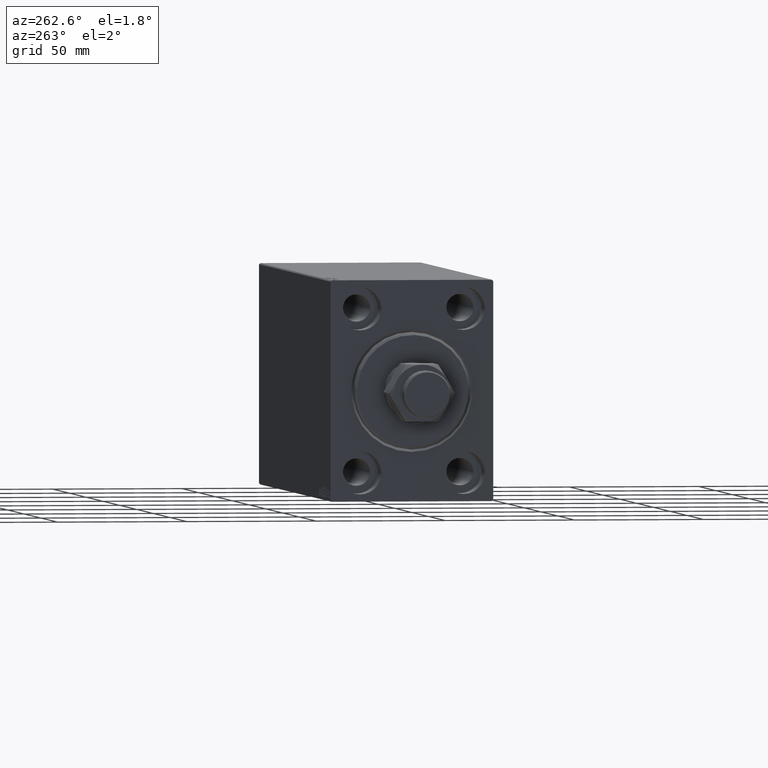
[diagram: clean part render]
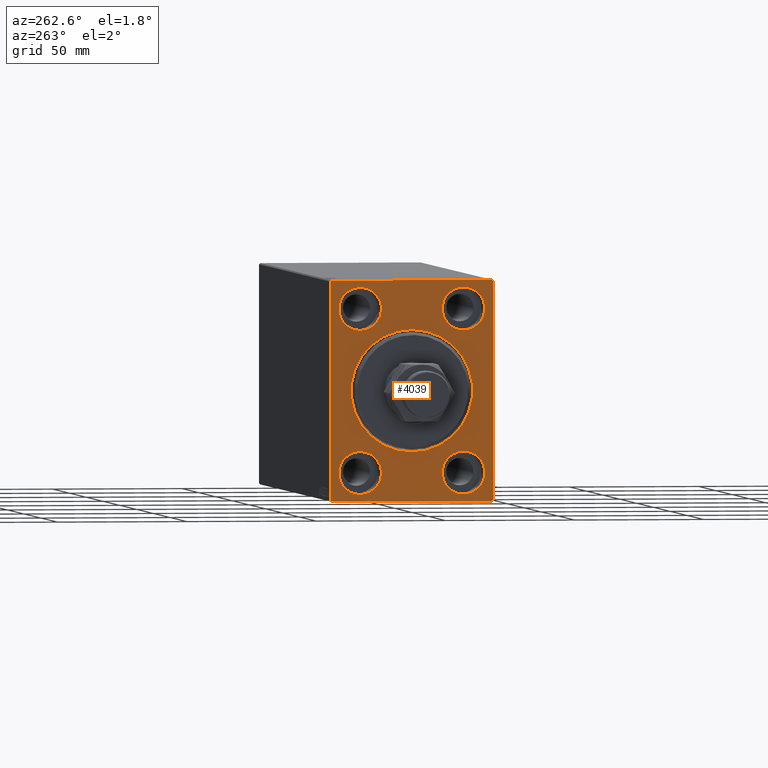
[diagram: same view with one face highlighted and labeled with its STEP entity id]
A machine part, auxiliary view. The second image highlights one B-rep face of the part: STEP entity #4039.
In plain terms, the highlighted planar face has unit normal (1, 0, 0).
Its self-contained STEP definition (entity closure, byte-faithful):
#397 = VERTEX_POINT ( 'NONE', #18683 ) ;
#747 = ORIENTED_EDGE ( 'NONE', *, *, #10269, .F. ) ;
#761 = CIRCLE ( 'NONE', #24245, 8.250000000000000000 ) ;
#1212 = DIRECTION ( 'NONE',  ( 0.000000000000000000, 0.000000000000000000, -1.000000000000000000 ) ) ;
#1278 = CARTESIAN_POINT ( 'NONE',  ( 0.000000000000000000, 0.000000000000000000, 0.000000000000000000 ) ) ;
#1511 = FACE_BOUND ( 'NONE', #20063, .T. ) ;
#1793 = AXIS2_PLACEMENT_3D ( 'NONE', #13239, #16449, #16894 ) ;
#2051 = DIRECTION ( 'NONE',  ( -1.000000000000000000, 0.000000000000000000, 0.000000000000000000 ) ) ;
#2132 = EDGE_CURVE ( 'NONE', #13421, #14173, #24064, .T. ) ;
#2227 = ORIENTED_EDGE ( 'NONE', *, *, #9951, .F. ) ;
#2259 = DIRECTION ( 'NONE',  ( -0.000000000000000000, 0.7071067811865474617, -0.7071067811865474617 ) ) ;
#2295 = EDGE_CURVE ( 'NONE', #27025, #31249, #35948, .T. ) ;
#2410 = EDGE_CURVE ( 'NONE', #38681, #27901, #27681, .T. ) ;
#3124 = DIRECTION ( 'NONE',  ( 1.000000000000000000, 0.000000000000000000, 0.000000000000000000 ) ) ;
#3178 = VECTOR ( 'NONE', #41059, 1000.000000000000000 ) ;
#3410 = AXIS2_PLACEMENT_3D ( 'NONE', #19933, #2051, #16721 ) ;
#4039 = ADVANCED_FACE ( 'NONE', ( #15746, #1511, #36379, #32484, #11636, #8411 ), #4958, .F. ) ;
#4210 = EDGE_CURVE ( 'NONE', #38681, #23390, #24151, .T. ) ;
#4354 = VERTEX_POINT ( 'NONE', #44537 ) ;
#4369 = CARTESIAN_POINT ( 'NONE',  ( 0.000000000000000000, -31.50000000000000000, -42.50000000000000711 ) ) ;
#4900 = VERTEX_POINT ( 'NONE', #14784 ) ;
#4958 = PLANE ( 'NONE',  #21506 ) ;
#5049 = ORIENTED_EDGE ( 'NONE', *, *, #4210, .T. ) ;
#5716 = DIRECTION ( 'NONE',  ( -1.000000000000000000, 0.000000000000000000, 0.000000000000000000 ) ) ;
#5962 = CARTESIAN_POINT ( 'NONE',  ( 0.000000000000000000, -31.50000000000000000, 42.49999999999999289 ) ) ;
#6330 = CARTESIAN_POINT ( 'NONE',  ( 0.000000000000000000, 31.50000000000000000, 42.00000000000000711 ) ) ;
#6688 = DIRECTION ( 'NONE',  ( -0.000000000000000000, 0.7071067811865474617, 0.7071067811865474617 ) ) ;
#7114 = VERTEX_POINT ( 'NONE', #12077 ) ;
#7332 = CARTESIAN_POINT ( 'NONE',  ( 0.000000000000000000, 31.50000000000001421, -42.00000000000000711 ) ) ;
#8114 = DIRECTION ( 'NONE',  ( 1.000000000000000000, 0.000000000000000000, 0.000000000000000000 ) ) ;
#8411 = FACE_OUTER_BOUND ( 'NONE', #35261, .T. ) ;
#8584 = CARTESIAN_POINT ( 'NONE',  ( 0.000000000000000000, -20.00000000000000355, -31.49999999999999289 ) ) ;
#9285 = CIRCLE ( 'NONE', #31960, 23.50000000000004619 ) ;
#9398 = CARTESIAN_POINT ( 'NONE',  ( 0.000000000000000000, 19.99999999999999645, -31.49999999999999289 ) ) ;
#9794 = CARTESIAN_POINT ( 'NONE',  ( 0.000000000000000000, 0.000000000000000000, 0.000000000000000000 ) ) ;
#9951 = EDGE_CURVE ( 'NONE', #7114, #31313, #37246, .T. ) ;
#10039 = ORIENTED_EDGE ( 'NONE', *, *, #25070, .F. ) ;
#10269 = EDGE_CURVE ( 'NONE', #41493, #4900, #40202, .T. ) ;
#10362 = LINE ( 'NONE', #17012, #40495 ) ;
#10462 = VECTOR ( 'NONE', #32341, 1000.000000000000000 ) ;
#10535 = VECTOR ( 'NONE', #2259, 1000.000000000000114 ) ;
#11177 = AXIS2_PLACEMENT_3D ( 'NONE', #9398, #23381, #12621 ) ;
#11636 = FACE_BOUND ( 'NONE', #44781, .T. ) ;
#11896 = DIRECTION ( 'NONE',  ( 0.000000000000000000, -1.000000000000000000, -2.202823461557850341E-16 ) ) ;
#12077 = CARTESIAN_POINT ( 'NONE',  ( 0.000000000000000000, -19.99999999999999645, 39.74999999999999289 ) ) ;
#12335 = AXIS2_PLACEMENT_3D ( 'NONE', #32732, #18295, #14628 ) ;
#12468 = ORIENTED_EDGE ( 'NONE', *, *, #14319, .F. ) ;
#12621 = DIRECTION ( 'NONE',  ( 0.000000000000000000, 0.000000000000000000, 1.000000000000000000 ) ) ;
#12747 = DIRECTION ( 'NONE',  ( 0.000000000000000000, 0.000000000000000000, 1.000000000000000000 ) ) ;
#13097 = AXIS2_PLACEMENT_3D ( 'NONE', #9794, #3124, #34756 ) ;
#13196 = EDGE_LOOP ( 'NONE', ( #27744, #30615 ) ) ;
#13239 = CARTESIAN_POINT ( 'NONE',  ( 0.000000000000000000, -20.00000000000000355, -31.49999999999999289 ) ) ;
#13421 = VERTEX_POINT ( 'NONE', #28138 ) ;
#13586 = VERTEX_POINT ( 'NONE', #20514 ) ;
#14063 = EDGE_CURVE ( 'NONE', #13586, #4354, #28427, .T. ) ;
#14173 = VERTEX_POINT ( 'NONE', #35882 ) ;
#14319 = EDGE_CURVE ( 'NONE', #31313, #7114, #33577, .T. ) ;
#14487 = CARTESIAN_POINT ( 'NONE',  ( 0.000000000000000000, -31.00000000000000000, -42.50000000000000711 ) ) ;
#14628 = DIRECTION ( 'NONE',  ( 0.000000000000000000, 0.000000000000000000, 1.000000000000000000 ) ) ;
#14784 = CARTESIAN_POINT ( 'NONE',  ( 0.000000000000000000, 19.99999999999999645, -39.74999999999999289 ) ) ;
#15746 = FACE_BOUND ( 'NONE', #13196, .T. ) ;
#16008 = CARTESIAN_POINT ( 'NONE',  ( 0.000000000000000000, 31.50000000000000000, 42.50000000000000711 ) ) ;
#16449 = DIRECTION ( 'NONE',  ( -1.000000000000000000, 0.000000000000000000, 0.000000000000000000 ) ) ;
#16595 = LINE ( 'NONE', #18104, #25909 ) ;
#16721 = DIRECTION ( 'NONE',  ( 0.000000000000000000, 0.000000000000000000, 1.000000000000000000 ) ) ;
#16894 = DIRECTION ( 'NONE',  ( 0.000000000000000000, 0.000000000000000000, 1.000000000000000000 ) ) ;
#17012 = CARTESIAN_POINT ( 'NONE',  ( 0.000000000000000000, -31.50000000000000000, 41.99999999999999289 ) ) ;
#17136 = VECTOR ( 'NONE', #24598, 1000.000000000000114 ) ;
#17290 = ORIENTED_EDGE ( 'NONE', *, *, #2132, .F. ) ;
#18104 = CARTESIAN_POINT ( 'NONE',  ( 0.000000000000000000, -31.00000000000000000, -42.50000000000000711 ) ) ;
#18205 = AXIS2_PLACEMENT_3D ( 'NONE', #32950, #32269, #29057 ) ;
#18261 = CARTESIAN_POINT ( 'NONE',  ( 0.000000000000000000, 20.00000000000000355, 23.25000000000000355 ) ) ;
#18295 = DIRECTION ( 'NONE',  ( -1.000000000000000000, 0.000000000000000000, 0.000000000000000000 ) ) ;
#18367 = ORIENTED_EDGE ( 'NONE', *, *, #28142, .T. ) ;
#18683 = CARTESIAN_POINT ( 'NONE',  ( 0.000000000000000000, -20.00000000000000355, -39.74999999999999289 ) ) ;
#18955 = DIRECTION ( 'NONE',  ( 1.000000000000000000, 0.000000000000000000, 0.000000000000000000 ) ) ;
#19568 = CARTESIAN_POINT ( 'NONE',  ( 0.000000000000000000, -20.00000000000000355, -23.24999999999999289 ) ) ;
#19933 = CARTESIAN_POINT ( 'NONE',  ( 0.000000000000000000, 20.00000000000000355, 31.50000000000000000 ) ) ;
#20063 = EDGE_LOOP ( 'NONE', ( #747, #10039 ) ) ;
#20514 = CARTESIAN_POINT ( 'NONE',  ( 0.000000000000000000, 0.000000000000000000, 23.50000000000004619 ) ) ;
#21079 = CIRCLE ( 'NONE', #12335, 8.249999999999992895 ) ;
#21302 = EDGE_CURVE ( 'NONE', #25881, #397, #761, .T. ) ;
#21506 = AXIS2_PLACEMENT_3D ( 'NONE', #1278, #18955, #22854 ) ;
#21792 = LINE ( 'NONE', #4369, #10462 ) ;
#22682 = CARTESIAN_POINT ( 'NONE',  ( 0.000000000000000000, -19.99999999999999645, 23.25000000000000355 ) ) ;
#22805 = DIRECTION ( 'NONE',  ( -1.000000000000000000, 0.000000000000000000, 0.000000000000000000 ) ) ;
#22819 = DIRECTION ( 'NONE',  ( -1.000000000000000000, 0.000000000000000000, 0.000000000000000000 ) ) ;
#22854 = DIRECTION ( 'NONE',  ( 0.000000000000000000, 0.000000000000000000, -1.000000000000000000 ) ) ;
#23306 = CARTESIAN_POINT ( 'NONE',  ( 0.000000000000000000, 19.99999999999999645, -23.24999999999999289 ) ) ;
#23381 = DIRECTION ( 'NONE',  ( -1.000000000000000000, 0.000000000000000000, 0.000000000000000000 ) ) ;
#23390 = VERTEX_POINT ( 'NONE', #43969 ) ;
#23559 = ORIENTED_EDGE ( 'NONE', *, *, #34904, .F. ) ;
#23885 = ORIENTED_EDGE ( 'NONE', *, *, #21302, .F. ) ;
#24064 = LINE ( 'NONE', #5962, #3178 ) ;
#24151 = LINE ( 'NONE', #42044, #17136 ) ;
#24245 = AXIS2_PLACEMENT_3D ( 'NONE', #8584, #22805, #40472 ) ;
#24598 = DIRECTION ( 'NONE',  ( 0.000000000000000000, -0.7071067811865474617, -0.7071067811865474617 ) ) ;
#25070 = EDGE_CURVE ( 'NONE', #4900, #41493, #30954, .T. ) ;
#25289 = VERTEX_POINT ( 'NONE', #18261 ) ;
#25479 = ORIENTED_EDGE ( 'NONE', *, *, #30099, .T. ) ;
#25516 = AXIS2_PLACEMENT_3D ( 'NONE', #40485, #22819, #12747 ) ;
#25548 = ORIENTED_EDGE ( 'NONE', *, *, #40494, .F. ) ;
#25881 = VERTEX_POINT ( 'NONE', #19568 ) ;
#25897 = VECTOR ( 'NONE', #37771, 1000.000000000000000 ) ;
#25909 = VECTOR ( 'NONE', #44812, 1000.000000000000114 ) ;
#26809 = CARTESIAN_POINT ( 'NONE',  ( 0.000000000000000000, -31.00000000000000000, 42.49999999999999289 ) ) ;
#27025 = VERTEX_POINT ( 'NONE', #36665 ) ;
#27660 = VERTEX_POINT ( 'NONE', #40920 ) ;
#27681 = LINE ( 'NONE', #34541, #25897 ) ;
#27744 = ORIENTED_EDGE ( 'NONE', *, *, #14063, .T. ) ;
#27901 = VERTEX_POINT ( 'NONE', #6330 ) ;
#28138 = CARTESIAN_POINT ( 'NONE',  ( 0.000000000000000000, -31.50000000000000000, 41.99999999999999289 ) ) ;
#28142 = EDGE_CURVE ( 'NONE', #30878, #14173, #16595, .T. ) ;
#28427 = CIRCLE ( 'NONE', #13097, 23.50000000000004619 ) ;
#28602 = ORIENTED_EDGE ( 'NONE', *, *, #2410, .F. ) ;
#28699 = ORIENTED_EDGE ( 'NONE', *, *, #30229, .F. ) ;
#29057 = DIRECTION ( 'NONE',  ( 0.000000000000000000, 0.000000000000000000, 1.000000000000000000 ) ) ;
#30099 = EDGE_CURVE ( 'NONE', #13421, #31249, #10362, .T. ) ;
#30229 = EDGE_CURVE ( 'NONE', #30878, #23390, #21792, .T. ) ;
#30615 = ORIENTED_EDGE ( 'NONE', *, *, #40682, .T. ) ;
#30878 = VERTEX_POINT ( 'NONE', #14487 ) ;
#30954 = CIRCLE ( 'NONE', #11177, 8.250000000000000000 ) ;
#31249 = VERTEX_POINT ( 'NONE', #26809 ) ;
#31313 = VERTEX_POINT ( 'NONE', #22682 ) ;
#31839 = ORIENTED_EDGE ( 'NONE', *, *, #43091, .F. ) ;
#31960 = AXIS2_PLACEMENT_3D ( 'NONE', #43444, #8114, #1212 ) ;
#32269 = DIRECTION ( 'NONE',  ( -1.000000000000000000, 0.000000000000000000, 0.000000000000000000 ) ) ;
#32341 = DIRECTION ( 'NONE',  ( 0.000000000000000000, 1.000000000000000000, 0.000000000000000000 ) ) ;
#32484 = FACE_BOUND ( 'NONE', #35986, .T. ) ;
#32534 = CIRCLE ( 'NONE', #1793, 8.250000000000000000 ) ;
#32699 = CIRCLE ( 'NONE', #3410, 8.249999999999992895 ) ;
#32732 = CARTESIAN_POINT ( 'NONE',  ( 0.000000000000000000, 20.00000000000000355, 31.50000000000000000 ) ) ;
#32950 = CARTESIAN_POINT ( 'NONE',  ( 0.000000000000000000, 19.99999999999999645, -31.49999999999999289 ) ) ;
#33162 = EDGE_CURVE ( 'NONE', #27025, #27901, #33896, .T. ) ;
#33577 = CIRCLE ( 'NONE', #25516, 8.249999999999992895 ) ;
#33896 = LINE ( 'NONE', #44256, #10535 ) ;
#33903 = CARTESIAN_POINT ( 'NONE',  ( 0.000000000000000000, -19.99999999999999645, 31.50000000000000000 ) ) ;
#34541 = CARTESIAN_POINT ( 'NONE',  ( 0.000000000000000000, 31.50000000000001421, -42.50000000000000711 ) ) ;
#34756 = DIRECTION ( 'NONE',  ( 0.000000000000000000, 0.000000000000000000, -1.000000000000000000 ) ) ;
#34904 = EDGE_CURVE ( 'NONE', #397, #25881, #32534, .T. ) ;
#35261 = EDGE_LOOP ( 'NONE', ( #17290, #25479, #38334, #38450, #28602, #5049, #28699, #18367 ) ) ;
#35882 = CARTESIAN_POINT ( 'NONE',  ( 0.000000000000000000, -31.50000000000000000, -42.00000000000000711 ) ) ;
#35948 = LINE ( 'NONE', #16008, #44231 ) ;
#35986 = EDGE_LOOP ( 'NONE', ( #25548, #31839 ) ) ;
#36379 = FACE_BOUND ( 'NONE', #37656, .T. ) ;
#36665 = CARTESIAN_POINT ( 'NONE',  ( 0.000000000000000000, 31.00000000000000000, 42.50000000000000711 ) ) ;
#37246 = CIRCLE ( 'NONE', #43849, 8.249999999999992895 ) ;
#37576 = DIRECTION ( 'NONE',  ( 0.000000000000000000, 0.000000000000000000, 1.000000000000000000 ) ) ;
#37656 = EDGE_LOOP ( 'NONE', ( #2227, #12468 ) ) ;
#37771 = DIRECTION ( 'NONE',  ( 0.000000000000000000, -1.632680918566406300E-16, 1.000000000000000000 ) ) ;
#38334 = ORIENTED_EDGE ( 'NONE', *, *, #2295, .F. ) ;
#38450 = ORIENTED_EDGE ( 'NONE', *, *, #33162, .T. ) ;
#38681 = VERTEX_POINT ( 'NONE', #7332 ) ;
#40202 = CIRCLE ( 'NONE', #18205, 8.250000000000000000 ) ;
#40472 = DIRECTION ( 'NONE',  ( 0.000000000000000000, 0.000000000000000000, 1.000000000000000000 ) ) ;
#40485 = CARTESIAN_POINT ( 'NONE',  ( 0.000000000000000000, -19.99999999999999645, 31.50000000000000000 ) ) ;
#40494 = EDGE_CURVE ( 'NONE', #27660, #25289, #32699, .T. ) ;
#40495 = VECTOR ( 'NONE', #6688, 1000.000000000000114 ) ;
#40682 = EDGE_CURVE ( 'NONE', #4354, #13586, #9285, .T. ) ;
#40920 = CARTESIAN_POINT ( 'NONE',  ( 0.000000000000000000, 20.00000000000000355, 39.74999999999999289 ) ) ;
#41059 = DIRECTION ( 'NONE',  ( 0.000000000000000000, 0.000000000000000000, -1.000000000000000000 ) ) ;
#41493 = VERTEX_POINT ( 'NONE', #23306 ) ;
#42044 = CARTESIAN_POINT ( 'NONE',  ( 0.000000000000000000, 31.50000000000001421, -42.00000000000000711 ) ) ;
#43091 = EDGE_CURVE ( 'NONE', #25289, #27660, #21079, .T. ) ;
#43444 = CARTESIAN_POINT ( 'NONE',  ( 0.000000000000000000, 0.000000000000000000, 0.000000000000000000 ) ) ;
#43849 = AXIS2_PLACEMENT_3D ( 'NONE', #33903, #5716, #37576 ) ;
#43969 = CARTESIAN_POINT ( 'NONE',  ( 0.000000000000000000, 31.00000000000001421, -42.50000000000000711 ) ) ;
#44231 = VECTOR ( 'NONE', #11896, 1000.000000000000000 ) ;
#44256 = CARTESIAN_POINT ( 'NONE',  ( 0.000000000000000000, 31.00000000000000000, 42.50000000000000711 ) ) ;
#44537 = CARTESIAN_POINT ( 'NONE',  ( 0.000000000000000000, 2.877919977996285448E-15, -23.50000000000004619 ) ) ;
#44781 = EDGE_LOOP ( 'NONE', ( #23885, #23559 ) ) ;
#44812 = DIRECTION ( 'NONE',  ( -0.000000000000000000, -0.7071067811865474617, 0.7071067811865474617 ) ) ;